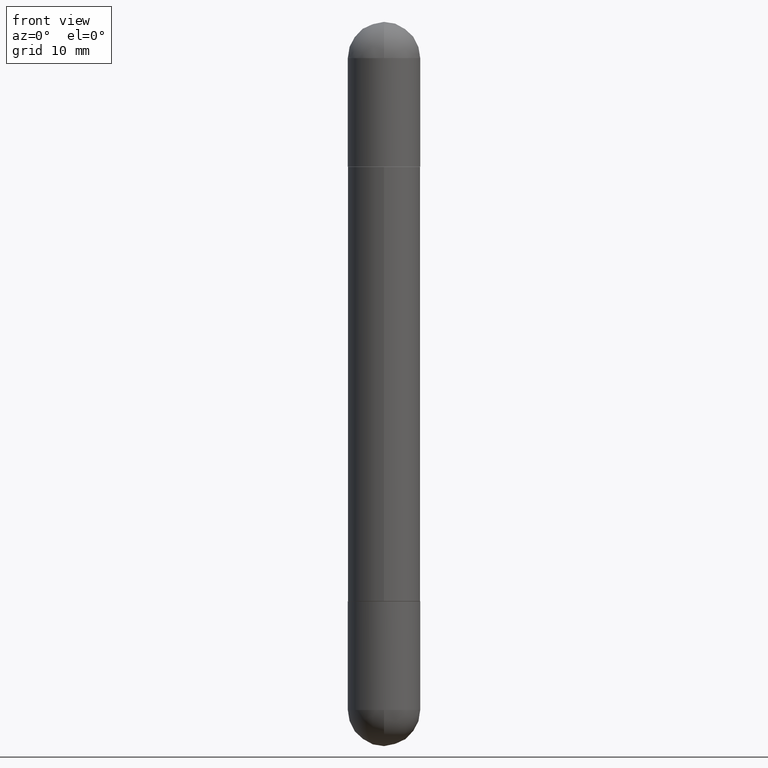
[diagram: clean part render]
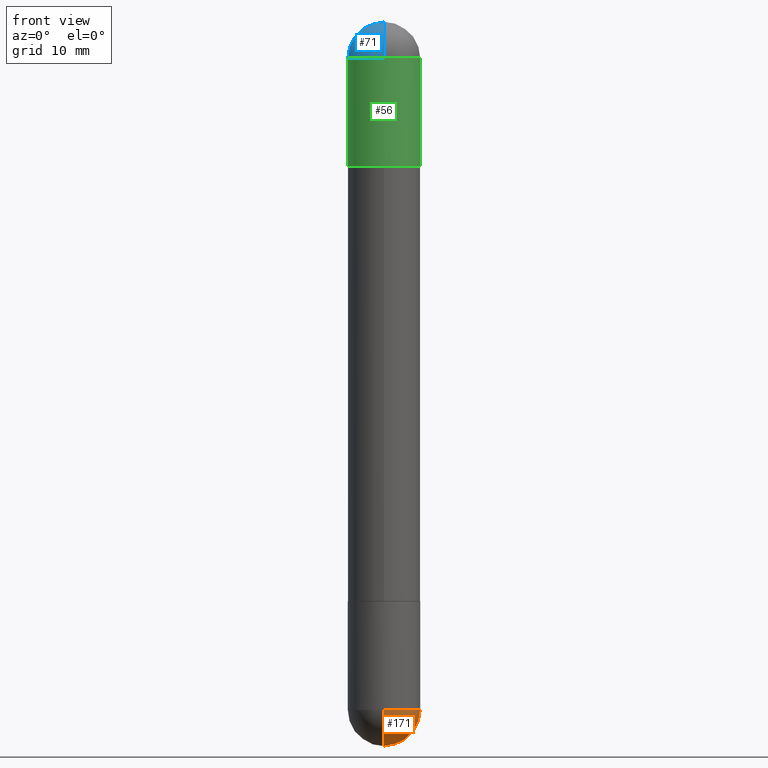
[diagram: same view with three faces highlighted in distinct colors, each labeled with its STEP entity id]
A machine part, front view with three faces highlighted in distinct colors.
Their STEP definitions:

[orange] entity #171 — the highlighted spherical surface has radius 3.175 mm.
#26 = AXIS2_PLACEMENT_3D ( 'NONE', #641, #76, #128 ) ;
#58 = DIRECTION ( 'NONE',  ( 1.000000000000000000, -6.982962677686270655E-15, 0.000000000000000000 ) ) ;
#63 = AXIS2_PLACEMENT_3D ( 'NONE', #385, #638, #642 ) ;
#76 = DIRECTION ( 'NONE',  ( -2.445468806185136597E-29, 3.491481338843145583E-15, 1.000000000000000000 ) ) ;
#86 = VERTEX_POINT ( 'NONE', #355 ) ;
#90 = CARTESIAN_POINT ( 'NONE',  ( 5.476868636775814291E-29, -8.766450547892521992E-15, -2.375000000000000000 ) ) ;
#111 = CIRCLE ( 'NONE', #298, 0.1250000000000001943 ) ;
#128 = DIRECTION ( 'NONE',  ( 1.000000000000000000, -6.982962677686270655E-15, 0.000000000000000000 ) ) ;
#139 = DIRECTION ( 'NONE',  ( -7.105427357601000281E-15, -1.000000000000000000, 0.000000000000000000 ) ) ;
#171 = ADVANCED_FACE ( 'NONE', ( #731 ), #726, .T. ) ;
#214 = DIRECTION ( 'NONE',  ( 6.982962677686265922E-15, 1.000000000000000000, -4.370956789862814839E-15 ) ) ;
#219 = DIRECTION ( 'NONE',  ( -1.000000000000000000, 6.982962677686265922E-15, -4.883557194083112901E-29 ) ) ;
#243 = VERTEX_POINT ( 'NONE', #484 ) ;
#247 = CIRCLE ( 'NONE', #63, 0.1250000000000001943 ) ;
#250 = DIRECTION ( 'NONE',  ( -1.000000000000000000, 7.105427357601001070E-15, -4.926315508542082329E-29 ) ) ;
#277 = EDGE_CURVE ( 'NONE', #243, #86, #750, .T. ) ;
#298 = AXIS2_PLACEMENT_3D ( 'NONE', #590, #250, #139 ) ;
#355 = CARTESIAN_POINT ( 'NONE',  ( 0.1250000000000000000, -8.510485763430165164E-15, -2.375000000000000000 ) ) ;
#385 = CARTESIAN_POINT ( 'NONE',  ( 5.476868636775814291E-29, -8.766450547892521992E-15, -2.375000000000000000 ) ) ;
#386 = ORIENTED_EDGE ( 'NONE', *, *, #703, .F. ) ;
#408 = EDGE_LOOP ( 'NONE', ( #386, #439, #688, #506 ) ) ;
#421 = DIRECTION ( 'NONE',  ( -2.445468806185136597E-29, 3.491481338843145583E-15, 1.000000000000000000 ) ) ;
#439 = ORIENTED_EDGE ( 'NONE', *, *, #640, .T. ) ;
#461 = VERTEX_POINT ( 'NONE', #754 ) ;
#484 = CARTESIAN_POINT ( 'NONE',  ( -8.881784197000694204E-16, -0.1250000000000086320, -2.374999999999999556 ) ) ;
#505 = CIRCLE ( 'NONE', #26, 0.1250000000000000000 ) ;
#506 = ORIENTED_EDGE ( 'NONE', *, *, #277, .F. ) ;
#525 = VERTEX_POINT ( 'NONE', #647 ) ;
#590 = CARTESIAN_POINT ( 'NONE',  ( 5.476868636775814291E-29, -8.766450547892521992E-15, -2.375000000000000000 ) ) ;
#609 = AXIS2_PLACEMENT_3D ( 'NONE', #617, #421, #58 ) ;
#617 = CARTESIAN_POINT ( 'NONE',  ( 5.807988414689700538E-29, -8.292268179752471696E-15, -2.375000000000000000 ) ) ;
#638 = DIRECTION ( 'NONE',  ( 1.000000000000000000, -6.982962677686265922E-15, 4.883557194083112340E-29 ) ) ;
#640 = EDGE_CURVE ( 'NONE', #525, #461, #247, .T. ) ;
#641 = CARTESIAN_POINT ( 'NONE',  ( 5.807988414689700538E-29, -8.292268179752471696E-15, -2.375000000000000000 ) ) ;
#642 = DIRECTION ( 'NONE',  ( 6.982962677686265133E-15, 1.000000000000000000, 0.000000000000000000 ) ) ;
#647 = CARTESIAN_POINT ( 'NONE',  ( 5.787897026856327965E-29, -9.195231672753244292E-15, -2.500000000000000444 ) ) ;
#688 = ORIENTED_EDGE ( 'NONE', *, *, #718, .F. ) ;
#703 = EDGE_CURVE ( 'NONE', #525, #243, #111, .T. ) ;
#718 = EDGE_CURVE ( 'NONE', #86, #461, #505, .T. ) ;
#726 = SPHERICAL_SURFACE ( 'NONE', #776, 0.1250000000000001943 ) ;
#731 = FACE_OUTER_BOUND ( 'NONE', #408, .T. ) ;
#750 = CIRCLE ( 'NONE', #609, 0.1250000000000000000 ) ;
#754 = CARTESIAN_POINT ( 'NONE',  ( 8.728703347108403340E-16, 0.1249999999999915623, -2.375000000000000888 ) ) ;
#776 = AXIS2_PLACEMENT_3D ( 'NONE', #90, #219, #214 ) ;

[blue] entity #71 — the highlighted spherical surface has radius 3.175 mm.
#3 = VERTEX_POINT ( 'NONE', #607 ) ;
#22 = CIRCLE ( 'NONE', #39, 0.1250000000000001943 ) ;
#30 = DIRECTION ( 'NONE',  ( -6.982962677686265133E-15, -1.000000000000000000, 0.000000000000000000 ) ) ;
#33 = CARTESIAN_POINT ( 'NONE',  ( 5.476868636775814291E-29, -8.766450547892521992E-15, -0.1250000000000004441 ) ) ;
#34 = EDGE_CURVE ( 'NONE', #805, #3, #328, .T. ) ;
#39 = AXIS2_PLACEMENT_3D ( 'NONE', #283, #474, #40 ) ;
#40 = DIRECTION ( 'NONE',  ( 6.860497997771529196E-15, 1.000000000000000000, 0.000000000000000000 ) ) ;
#60 = AXIS2_PLACEMENT_3D ( 'NONE', #419, #674, #661 ) ;
#61 = ORIENTED_EDGE ( 'NONE', *, *, #440, .T. ) ;
#71 = ADVANCED_FACE ( 'NONE', ( #602 ), #163, .T. ) ;
#79 = ORIENTED_EDGE ( 'NONE', *, *, #132, .T. ) ;
#80 = CARTESIAN_POINT ( 'NONE',  ( -8.575622497213856334E-16, -0.1250000000000086320, -0.1250000000000008882 ) ) ;
#132 = EDGE_CURVE ( 'NONE', #549, #805, #501, .T. ) ;
#141 = CARTESIAN_POINT ( 'NONE',  ( 5.787897026856327965E-29, -9.195231672753244292E-15, -2.561107494060246644E-16 ) ) ;
#151 = AXIS2_PLACEMENT_3D ( 'NONE', #438, #631, #248 ) ;
#163 = SPHERICAL_SURFACE ( 'NONE', #60, 0.1250000000000001943 ) ;
#198 = EDGE_CURVE ( 'NONE', #549, #797, #22, .T. ) ;
#231 = DIRECTION ( 'NONE',  ( -1.000000000000000000, 6.982962677686265922E-15, 4.883557194083112340E-29 ) ) ;
#248 = DIRECTION ( 'NONE',  ( 1.000000000000000000, -6.982962677686270655E-15, 0.000000000000000000 ) ) ;
#268 = EDGE_LOOP ( 'NONE', ( #620, #79, #340, #61 ) ) ;
#283 = CARTESIAN_POINT ( 'NONE',  ( 5.476868636775814291E-29, -8.766450547892521992E-15, -0.1250000000000004441 ) ) ;
#285 = AXIS2_PLACEMENT_3D ( 'NONE', #33, #231, #30 ) ;
#328 = CIRCLE ( 'NONE', #806, 0.1250000000000000000 ) ;
#340 = ORIENTED_EDGE ( 'NONE', *, *, #34, .T. ) ;
#358 = DIRECTION ( 'NONE',  ( 2.445468806185136597E-29, -3.491481338843145583E-15, 1.000000000000000000 ) ) ;
#419 = CARTESIAN_POINT ( 'NONE',  ( 5.476868636775814291E-29, -8.766450547892521992E-15, -0.1250000000000004441 ) ) ;
#423 = CARTESIAN_POINT ( 'NONE',  ( 5.807988414689700538E-29, -8.292268179752471696E-15, -0.1250000000000004441 ) ) ;
#438 = CARTESIAN_POINT ( 'NONE',  ( 5.807988414689700538E-29, -8.292268179752471696E-15, -0.1250000000000004441 ) ) ;
#440 = EDGE_CURVE ( 'NONE', #3, #797, #811, .T. ) ;
#470 = DIRECTION ( 'NONE',  ( 1.000000000000000000, -6.982962677686270655E-15, 0.000000000000000000 ) ) ;
#474 = DIRECTION ( 'NONE',  ( 1.000000000000000000, -6.860497997771530774E-15, -4.840798879624142912E-29 ) ) ;
#501 = CIRCLE ( 'NONE', #285, 0.1250000000000001943 ) ;
#549 = VERTEX_POINT ( 'NONE', #141 ) ;
#602 = FACE_OUTER_BOUND ( 'NONE', #268, .T. ) ;
#607 = CARTESIAN_POINT ( 'NONE',  ( -0.1250000000000000000, -6.780053178997941168E-15, -0.1250000000000004441 ) ) ;
#620 = ORIENTED_EDGE ( 'NONE', *, *, #198, .F. ) ;
#631 = DIRECTION ( 'NONE',  ( 2.445468806185136597E-29, -3.491481338843145583E-15, 1.000000000000000000 ) ) ;
#661 = DIRECTION ( 'NONE',  ( 6.982962677686265922E-15, 1.000000000000000000, 3.551402391763536859E-15 ) ) ;
#674 = DIRECTION ( 'NONE',  ( 1.000000000000000000, -6.982962677686265922E-15, -4.883557194083112901E-29 ) ) ;
#777 = CARTESIAN_POINT ( 'NONE',  ( 8.728703347108403340E-16, 0.1249999999999915623, -0.1250000000000000000 ) ) ;
#797 = VERTEX_POINT ( 'NONE', #80 ) ;
#805 = VERTEX_POINT ( 'NONE', #777 ) ;
#806 = AXIS2_PLACEMENT_3D ( 'NONE', #423, #358, #470 ) ;
#811 = CIRCLE ( 'NONE', #151, 0.1250000000000000000 ) ;

[green] entity #56 — the highlighted cylindrical surface (edge-blend (fillet) strip) has radius 3.175 mm, axis along (-0, 0, -1).
#1 = CARTESIAN_POINT ( 'NONE',  ( 0.1250000000000000000, -8.510485763430165164E-15, -0.1250000000000004441 ) ) ;
#3 = VERTEX_POINT ( 'NONE', #607 ) ;
#9 = EDGE_LOOP ( 'NONE', ( #51, #401, #313, #57, #394 ) ) ;
#41 = DIRECTION ( 'NONE',  ( 1.000000000000000000, -6.982962677686266711E-15, 0.000000000000000000 ) ) ;
#51 = ORIENTED_EDGE ( 'NONE', *, *, #440, .F. ) ;
#56 = ADVANCED_FACE ( 'NONE', ( #665 ), #160, .T. ) ;
#57 = ORIENTED_EDGE ( 'NONE', *, *, #476, .F. ) ;
#68 = DIRECTION ( 'NONE',  ( 2.445468806185136597E-29, -3.491481338843145583E-15, 1.000000000000000000 ) ) ;
#80 = CARTESIAN_POINT ( 'NONE',  ( -8.575622497213856334E-16, -0.1250000000000086320, -0.1250000000000008882 ) ) ;
#103 = DIRECTION ( 'NONE',  ( -2.445468806185136597E-29, 3.491481338843145583E-15, -1.000000000000000000 ) ) ;
#124 = DIRECTION ( 'NONE',  ( -2.445468806185136877E-29, 3.491481338843145188E-15, -1.000000000000000000 ) ) ;
#133 = LINE ( 'NONE', #266, #794 ) ;
#151 = AXIS2_PLACEMENT_3D ( 'NONE', #438, #631, #248 ) ;
#160 = CYLINDRICAL_SURFACE ( 'NONE', #388, 0.1250000000000000000 ) ;
#162 = DIRECTION ( 'NONE',  ( 2.445468806185136597E-29, -3.491481338843145583E-15, 1.000000000000000000 ) ) ;
#175 = EDGE_CURVE ( 'NONE', #596, #279, #672, .T. ) ;
#186 = CARTESIAN_POINT ( 'NONE',  ( 0.1250000000000000000, -8.728703347107833388E-16, -2.500000000000000444 ) ) ;
#248 = DIRECTION ( 'NONE',  ( 1.000000000000000000, -6.982962677686270655E-15, 0.000000000000000000 ) ) ;
#266 = CARTESIAN_POINT ( 'NONE',  ( -0.1250000000000000000, 8.575622497214414453E-16, -2.500000000000000444 ) ) ;
#279 = VERTEX_POINT ( 'NONE', #807 ) ;
#313 = ORIENTED_EDGE ( 'NONE', *, *, #175, .T. ) ;
#350 = CIRCLE ( 'NONE', #671, 0.1250000000000000000 ) ;
#384 = LINE ( 'NONE', #186, #724 ) ;
#388 = AXIS2_PLACEMENT_3D ( 'NONE', #611, #103, #41 ) ;
#391 = DIRECTION ( 'NONE',  ( -2.445468806185136877E-29, 3.491481338843145188E-15, -1.000000000000000000 ) ) ;
#394 = ORIENTED_EDGE ( 'NONE', *, *, #462, .F. ) ;
#400 = DIRECTION ( 'NONE',  ( 1.000000000000000000, -6.982962677686270655E-15, 0.000000000000000000 ) ) ;
#401 = ORIENTED_EDGE ( 'NONE', *, *, #767, .T. ) ;
#438 = CARTESIAN_POINT ( 'NONE',  ( 5.807988414689700538E-29, -8.292268179752471696E-15, -0.1250000000000004441 ) ) ;
#440 = EDGE_CURVE ( 'NONE', #3, #797, #811, .T. ) ;
#462 = EDGE_CURVE ( 'NONE', #797, #500, #350, .T. ) ;
#465 = CARTESIAN_POINT ( 'NONE',  ( -0.1250000000000000000, -6.780053178997939591E-15, -0.5000000000000006661 ) ) ;
#468 = CARTESIAN_POINT ( 'NONE',  ( 4.890937612370273194E-29, -6.982962677686291165E-15, -0.5000000000000006661 ) ) ;
#476 = EDGE_CURVE ( 'NONE', #500, #279, #384, .T. ) ;
#500 = VERTEX_POINT ( 'NONE', #1 ) ;
#596 = VERTEX_POINT ( 'NONE', #465 ) ;
#607 = CARTESIAN_POINT ( 'NONE',  ( -0.1250000000000000000, -6.780053178997941168E-15, -0.1250000000000004441 ) ) ;
#611 = CARTESIAN_POINT ( 'NONE',  ( 0.000000000000000000, 0.000000000000000000, -2.500000000000000444 ) ) ;
#631 = DIRECTION ( 'NONE',  ( 2.445468806185136597E-29, -3.491481338843145583E-15, 1.000000000000000000 ) ) ;
#665 = FACE_OUTER_BOUND ( 'NONE', #9, .T. ) ;
#671 = AXIS2_PLACEMENT_3D ( 'NONE', #698, #68, #757 ) ;
#672 = CIRCLE ( 'NONE', #789, 0.1250000000000000000 ) ;
#698 = CARTESIAN_POINT ( 'NONE',  ( 5.807988414689700538E-29, -8.292268179752471696E-15, -0.1250000000000004441 ) ) ;
#724 = VECTOR ( 'NONE', #124, 39.37007874015748143 ) ;
#757 = DIRECTION ( 'NONE',  ( 1.000000000000000000, -6.982962677686270655E-15, 0.000000000000000000 ) ) ;
#767 = EDGE_CURVE ( 'NONE', #3, #596, #133, .T. ) ;
#789 = AXIS2_PLACEMENT_3D ( 'NONE', #468, #162, #400 ) ;
#794 = VECTOR ( 'NONE', #391, 39.37007874015748143 ) ;
#797 = VERTEX_POINT ( 'NONE', #80 ) ;
#807 = CARTESIAN_POINT ( 'NONE',  ( 0.1250000000000000000, -7.855833012397075293E-15, -0.5000000000000006661 ) ) ;
#811 = CIRCLE ( 'NONE', #151, 0.1250000000000000000 ) ;